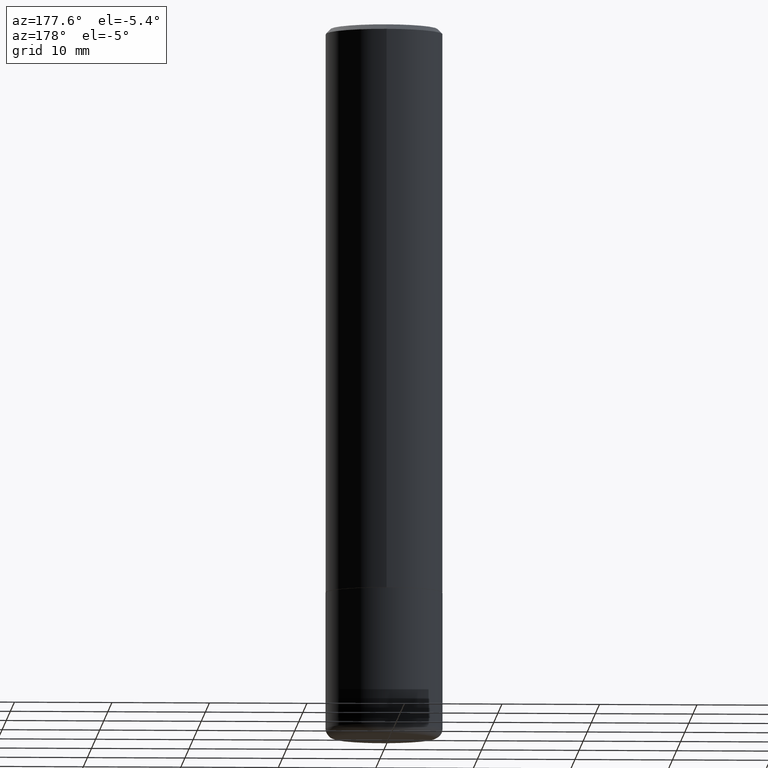
[diagram: clean part render]
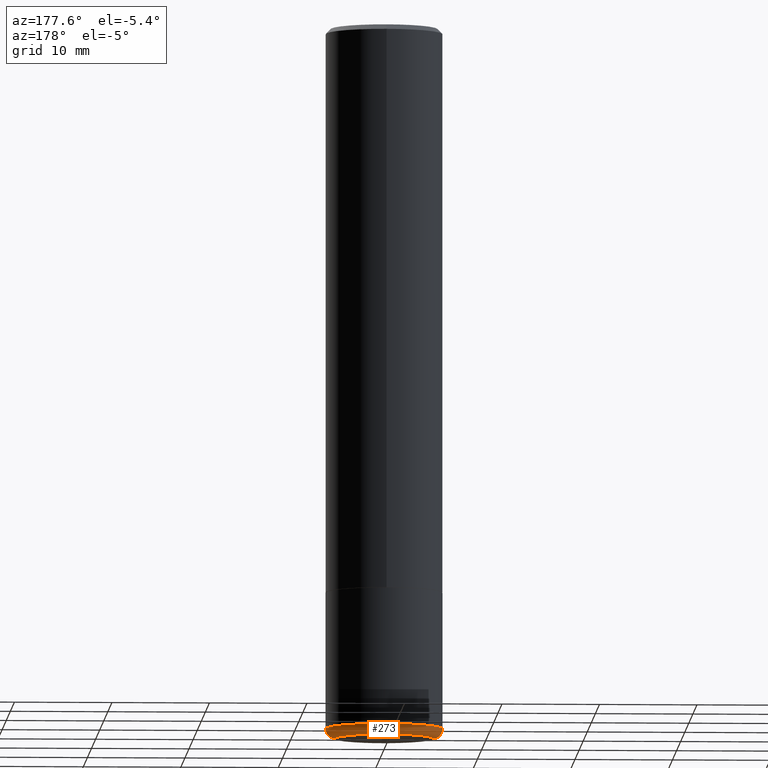
[diagram: same view with one face highlighted and labeled with its STEP entity id]
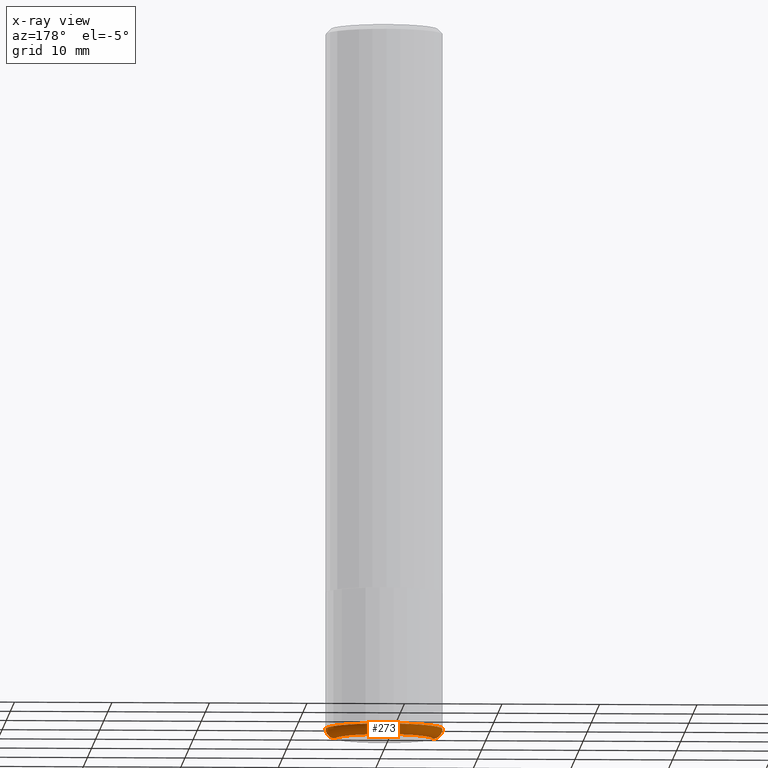
[diagram: x-ray of the same camera — body ghosted, the highlighted face saturated]
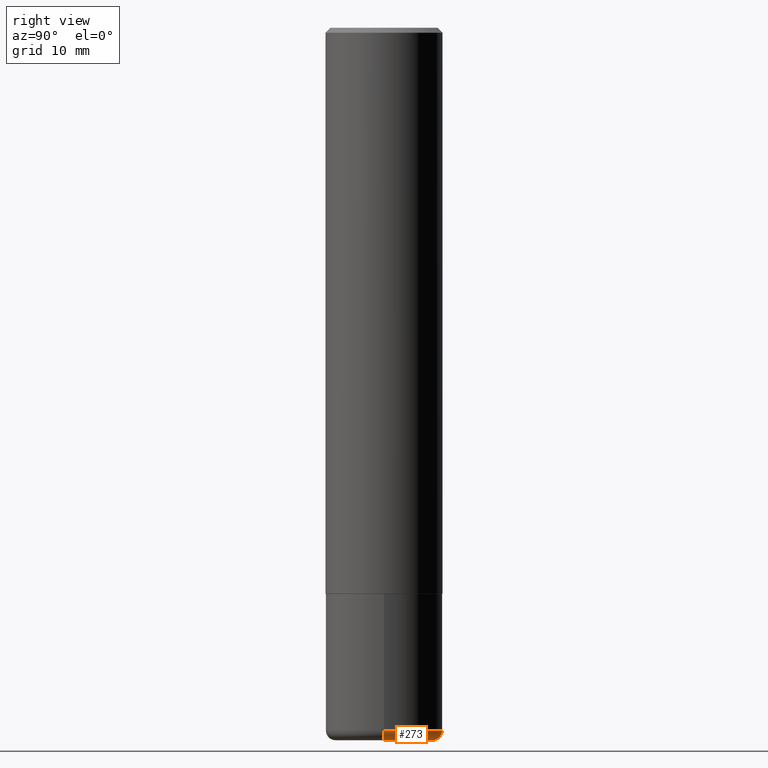
[diagram: same view with one face highlighted and labeled with its STEP entity id]
A machine part, auxiliary view. The second image highlights one B-rep face of the part: STEP entity #273.
The next image is the same camera in x-ray: the body ghosted, the highlighted face saturated — about 0% of this face is hidden behind the body in this view.
A second angle (right view) of the same face is appended — the face is thin or edge-on in the first view.
In plain terms, the highlighted toroidal blend (fillet) surface has major radius 4.9987 mm and minor (blend) radius 1.0008 mm.
Its self-contained STEP definition (entity closure, byte-faithful):
#3 = AXIS2_PLACEMENT_3D ( 'NONE', #296, #414, #236 ) ;
#21 = DIRECTION ( 'NONE',  ( 1.000000000000000000, -6.982962677686266711E-15, 0.000000000000000000 ) ) ;
#24 = ORIENTED_EDGE ( 'NONE', *, *, #150, .F. ) ;
#50 = TOROIDAL_SURFACE ( 'NONE', #387, 0.1968000000000000027, 0.03939999999999978936 ) ;
#60 = DIRECTION ( 'NONE',  ( 1.000000000000000000, -6.982962677686271444E-15, 0.000000000000000000 ) ) ;
#62 = CIRCLE ( 'NONE', #237, 0.2361999999999999933 ) ;
#78 = DIRECTION ( 'NONE',  ( -2.445468806185136597E-29, 3.491481338843145583E-15, 1.000000000000000000 ) ) ;
#99 = VERTEX_POINT ( 'NONE', #151 ) ;
#107 = VERTEX_POINT ( 'NONE', #391 ) ;
#137 = CARTESIAN_POINT ( 'NONE',  ( -0.1968000000000000027, -8.427410162539372618E-15, -2.873999999999999666 ) ) ;
#150 = EDGE_CURVE ( 'NONE', #99, #107, #62, .T. ) ;
#151 = CARTESIAN_POINT ( 'NONE',  ( 0.2361999999999998823, -1.154632878755427425E-14, -2.834599999999999120 ) ) ;
#153 = ORIENTED_EDGE ( 'NONE', *, *, #196, .T. ) ;
#157 = CARTESIAN_POINT ( 'NONE',  ( 6.931925878012387517E-29, -9.896953003084780885E-15, -2.834600000000000009 ) ) ;
#167 = ORIENTED_EDGE ( 'NONE', *, *, #180, .T. ) ;
#169 = VERTEX_POINT ( 'NONE', #137 ) ;
#180 = EDGE_CURVE ( 'NONE', #169, #107, #372, .T. ) ;
#181 = CARTESIAN_POINT ( 'NONE',  ( 0.1968000000000000027, -1.140876442280385662E-14, -2.873999999999999666 ) ) ;
#196 = EDGE_CURVE ( 'NONE', #382, #169, #213, .T. ) ;
#198 = DIRECTION ( 'NONE',  ( -6.982962677686266711E-15, -1.000000000000000000, 3.491481338843145583E-15 ) ) ;
#213 = CIRCLE ( 'NONE', #245, 0.1968000000000000027 ) ;
#214 = DIRECTION ( 'NONE',  ( 1.000000000000000000, -6.982962677686265133E-15, 0.000000000000000000 ) ) ;
#222 = CARTESIAN_POINT ( 'NONE',  ( 0.1968000000000000027, -1.127120005805343740E-14, -2.834600000000000009 ) ) ;
#236 = DIRECTION ( 'NONE',  ( -1.000000000000000000, 7.105427357601014480E-15, 0.000000000000000000 ) ) ;
#237 = AXIS2_PLACEMENT_3D ( 'NONE', #418, #78, #214 ) ;
#245 = AXIS2_PLACEMENT_3D ( 'NONE', #408, #348, #60 ) ;
#257 = DIRECTION ( 'NONE',  ( 1.000000000000000000, -6.982962677686262766E-15, 4.883557194083111780E-29 ) ) ;
#273 = ADVANCED_FACE ( 'NONE', ( #370 ), #50, .T. ) ;
#284 = CIRCLE ( 'NONE', #312, 0.03939999999999978936 ) ;
#293 = EDGE_CURVE ( 'NONE', #382, #99, #284, .T. ) ;
#296 = CARTESIAN_POINT ( 'NONE',  ( -0.1968000000000000027, -8.498604899108903108E-15, -2.834600000000000009 ) ) ;
#312 = AXIS2_PLACEMENT_3D ( 'NONE', #222, #198, #21 ) ;
#348 = DIRECTION ( 'NONE',  ( -2.445468806185136597E-29, 3.491481338843145583E-15, 1.000000000000000000 ) ) ;
#351 = ORIENTED_EDGE ( 'NONE', *, *, #293, .F. ) ;
#370 = FACE_OUTER_BOUND ( 'NONE', #385, .T. ) ;
#372 = CIRCLE ( 'NONE', #3, 0.03939999999999978936 ) ;
#376 = DIRECTION ( 'NONE',  ( -2.445468806185136597E-29, 3.491481338843145583E-15, 1.000000000000000000 ) ) ;
#382 = VERTEX_POINT ( 'NONE', #181 ) ;
#385 = EDGE_LOOP ( 'NONE', ( #153, #167, #24, #351 ) ) ;
#387 = AXIS2_PLACEMENT_3D ( 'NONE', #157, #376, #257 ) ;
#391 = CARTESIAN_POINT ( 'NONE',  ( -0.2361999999999998823, -8.218651061219422913E-15, -2.834599999999999120 ) ) ;
#408 = CARTESIAN_POINT ( 'NONE',  ( 7.028277348976080992E-29, -1.003451736783519852E-14, -2.873999999999999666 ) ) ;
#414 = DIRECTION ( 'NONE',  ( 7.105427357601001859E-15, 1.000000000000000000, -3.491481338843145583E-15 ) ) ;
#418 = CARTESIAN_POINT ( 'NONE',  ( 6.931925878012386396E-29, -9.896953003084777729E-15, -2.834599999999999120 ) ) ;